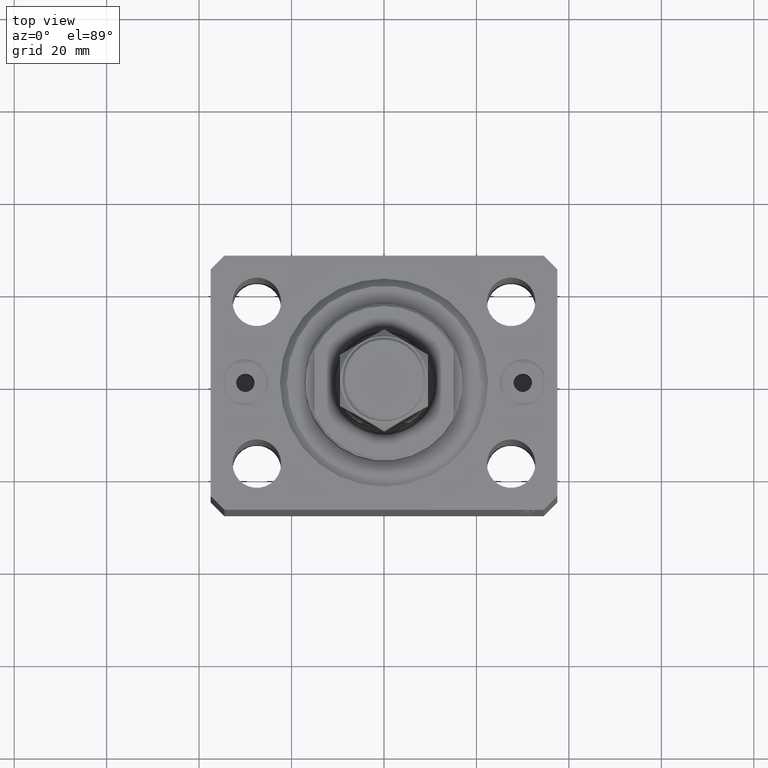
[diagram: clean part render]
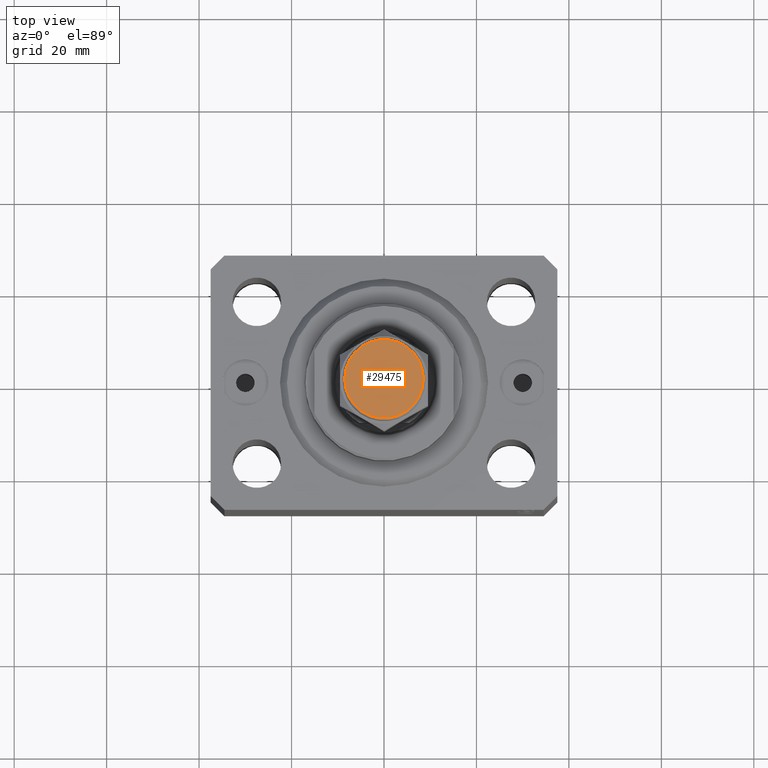
[diagram: same view with one face highlighted and labeled with its STEP entity id]
A machine part, top view. The second image highlights one B-rep face of the part: STEP entity #29475.
In plain terms, the highlighted planar face has unit normal (0, 0, 1).
Its self-contained STEP definition (entity closure, byte-faithful):
#4196 = CARTESIAN_POINT ( 'NONE',  ( -8.499999999999992895, 0.000000000000000000, 33.00000000000000000 ) ) ;
#6868 = DIRECTION ( 'NONE',  ( 1.000000000000000000, 0.000000000000000000, 0.000000000000000000 ) ) ;
#7564 = DIRECTION ( 'NONE',  ( 0.000000000000000000, 0.000000000000000000, 1.000000000000000000 ) ) ;
#8215 = AXIS2_PLACEMENT_3D ( 'NONE', #20441, #21136, #41906 ) ;
#12375 = EDGE_LOOP ( 'NONE', ( #36542, #13115 ) ) ;
#13115 = ORIENTED_EDGE ( 'NONE', *, *, #15586, .T. ) ;
#13269 = CARTESIAN_POINT ( 'NONE',  ( 8.499999999999992895, 1.071565949253933532E-15, 33.00000000000000000 ) ) ;
#14109 = CIRCLE ( 'NONE', #45405, 8.499999999999992895 ) ;
#15586 = EDGE_CURVE ( 'NONE', #39178, #41089, #14109, .T. ) ;
#16718 = PLANE ( 'NONE',  #8215 ) ;
#17174 = FACE_OUTER_BOUND ( 'NONE', #12375, .T. ) ;
#20441 = CARTESIAN_POINT ( 'NONE',  ( 0.000000000000000000, 0.000000000000000000, 33.00000000000000000 ) ) ;
#21136 = DIRECTION ( 'NONE',  ( 0.000000000000000000, 0.000000000000000000, 1.000000000000000000 ) ) ;
#23685 = AXIS2_PLACEMENT_3D ( 'NONE', #33089, #25632, #25864 ) ;
#24592 = CARTESIAN_POINT ( 'NONE',  ( 0.000000000000000000, 0.000000000000000000, 33.00000000000000000 ) ) ;
#25632 = DIRECTION ( 'NONE',  ( 0.000000000000000000, 0.000000000000000000, 1.000000000000000000 ) ) ;
#25864 = DIRECTION ( 'NONE',  ( 1.000000000000000000, 0.000000000000000000, 0.000000000000000000 ) ) ;
#29475 = ADVANCED_FACE ( 'NONE', ( #17174 ), #16718, .T. ) ;
#33089 = CARTESIAN_POINT ( 'NONE',  ( 0.000000000000000000, 0.000000000000000000, 33.00000000000000000 ) ) ;
#36542 = ORIENTED_EDGE ( 'NONE', *, *, #37580, .T. ) ;
#37580 = EDGE_CURVE ( 'NONE', #41089, #39178, #43059, .T. ) ;
#39178 = VERTEX_POINT ( 'NONE', #13269 ) ;
#41089 = VERTEX_POINT ( 'NONE', #4196 ) ;
#41906 = DIRECTION ( 'NONE',  ( 1.000000000000000000, 0.000000000000000000, -0.000000000000000000 ) ) ;
#43059 = CIRCLE ( 'NONE', #23685, 8.499999999999992895 ) ;
#45405 = AXIS2_PLACEMENT_3D ( 'NONE', #24592, #7564, #6868 ) ;